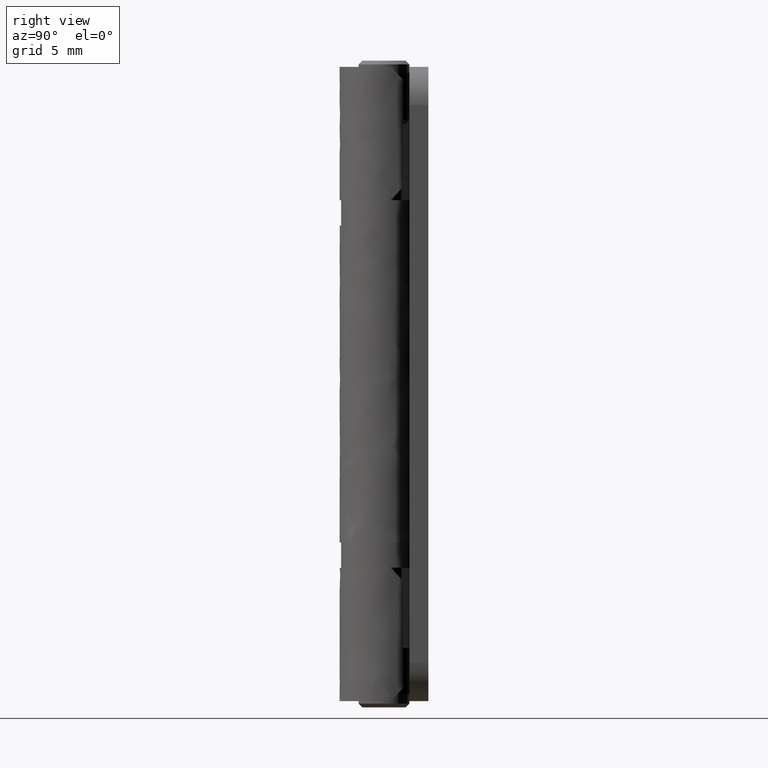
[diagram: clean part render]
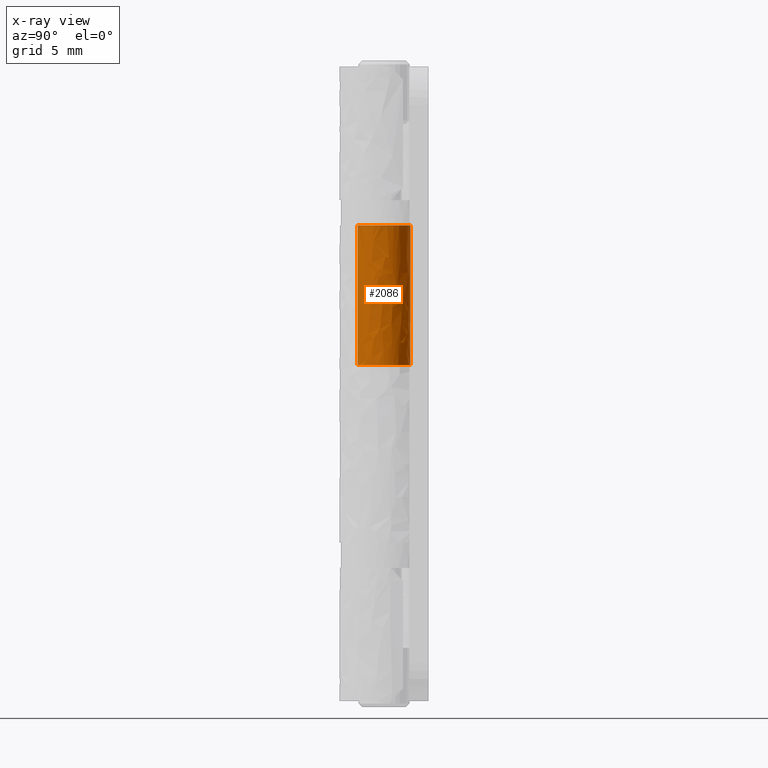
[diagram: x-ray — body ghosted, one internal face saturated and labeled with its STEP entity id]
A machine part, right view, then the same camera in x-ray: the body is ghosted and one INTERNAL B-rep face — a face not visible from any outside direction — is saturated and labeled: STEP entity #2086.
In plain terms, the highlighted face is a freeform B-spline surface patch.
Its self-contained STEP definition (entity closure, byte-faithful):
#1650=CARTESIAN_POINT('',(-0.310399763413693,2.076933313053822,26.500000000000000));
#1651=VERTEX_POINT('',#1650);
#1665=CARTESIAN_POINT('',(2.100000000000000,0.0,26.500000000000000));
#1666=VERTEX_POINT('',#1665);
#1667=CARTESIAN_POINT('',(-0.310399763413693,2.076933313053822,26.499999999999996));
#1668=CARTESIAN_POINT('',(-0.156056957177558,2.099999999999999,26.500000000000004));
#1669=CARTESIAN_POINT('',(0.0,2.100000000000000,26.500000000000000));
#1670=CARTESIAN_POINT('',(2.100000000000000,2.100000000000000,26.500000000000000));
#1671=CARTESIAN_POINT('',(2.100000000000000,0.0,26.500000000000000));
#1679=(BOUNDED_CURVE()B_SPLINE_CURVE(2,(#1667,#1668,#1669,#1670,#1671),.UNSPECIFIED.,.F.,.U.)B_SPLINE_CURVE_WITH_KNOTS((3,2,3),(0.224511030384919,0.250000000000000,0.500000000000000),.UNSPECIFIED.)CURVE()GEOMETRIC_REPRESENTATION_ITEM()RATIONAL_B_SPLINE_CURVE((0.946364879855924,0.970137814580803,1.0,0.707106781186548,1.0))REPRESENTATION_ITEM(''));
#1680=EDGE_CURVE('',#1651,#1666,#1679,.T.);
#1682=CARTESIAN_POINT('',(0.310399763413692,-2.076933313053822,26.500000000000000));
#1683=VERTEX_POINT('',#1682);
#1684=CARTESIAN_POINT('',(2.100000000000000,0.0,26.500000000000000));
#1685=CARTESIAN_POINT('',(2.100000000000001,-1.809475765644795,26.499999999999996));
#1686=CARTESIAN_POINT('',(0.310399763413692,-2.076933313053822,26.500000000000007));
#1694=(BOUNDED_CURVE()B_SPLINE_CURVE(2,(#1684,#1685,#1686),.UNSPECIFIED.,.F.,.U.)B_SPLINE_CURVE_WITH_KNOTS((3,3),(0.500000000000000,0.724511030384919),.UNSPECIFIED.)CURVE()GEOMETRIC_REPRESENTATION_ITEM()RATIONAL_B_SPLINE_CURVE((1.0,0.736968966605745,0.946364879855924))REPRESENTATION_ITEM(''));
#1695=EDGE_CURVE('',#1666,#1683,#1694,.T.);
#1923=CARTESIAN_POINT('',(-0.310399763388014,2.076933313057659,30.0));
#1924=VERTEX_POINT('',#1923);
#1938=CARTESIAN_POINT('',(-0.310399763413693,2.076933313053822,26.500000000000000));
#1939=CARTESIAN_POINT('',(-0.310399763388014,2.076933313057659,30.0));
#1940=QUASI_UNIFORM_CURVE('',1,(#1938,#1939),.UNSPECIFIED.,.F.,.U.);
#1941=EDGE_CURVE('',#1651,#1924,#1940,.T.);
#1945=CARTESIAN_POINT('',(0.310399763404862,-2.076933313055140,37.500000000000000));
#1946=VERTEX_POINT('',#1945);
#1947=CARTESIAN_POINT('',(0.310399763413692,-2.076933313053822,26.500000000000000));
#1948=CARTESIAN_POINT('',(0.310399763404862,-2.076933313055140,37.500000000000000));
#1949=QUASI_UNIFORM_CURVE('',1,(#1947,#1948),.UNSPECIFIED.,.F.,.U.);
#1950=EDGE_CURVE('',#1683,#1946,#1949,.T.);
#2020=CARTESIAN_POINT('',(0.310399763372182,-2.076933313060025,26.224999999999991));
#2021=CARTESIAN_POINT('',(2.387333076432207,-1.766533549687843,26.224999999999998));
#2022=CARTESIAN_POINT('',(2.076933313060025,0.310399763372182,26.224999999999991));
#2023=CARTESIAN_POINT('',(1.766533549687843,2.387333076432207,26.224999999999998));
#2024=CARTESIAN_POINT('',(-0.310399763372182,2.076933313060025,26.224999999999991));
#2025=CARTESIAN_POINT('',(0.310399763372182,-2.076933313060025,37.781875000000007));
#2026=CARTESIAN_POINT('',(2.387333076432207,-1.766533549687843,37.781875000000014));
#2027=CARTESIAN_POINT('',(2.076933313060025,0.310399763372182,37.781875000000007));
#2028=CARTESIAN_POINT('',(1.766533549687843,2.387333076432207,37.781875000000014));
#2029=CARTESIAN_POINT('',(-0.310399763372182,2.076933313060025,37.781875000000007));
#2037=(BOUNDED_SURFACE()B_SPLINE_SURFACE(2,1,((#2020,#2025),(#2021,#2026),(#2022,#2027),(#2023,#2028),(#2024,#2029)),.UNSPECIFIED.,.F.,.F.,.U.)B_SPLINE_SURFACE_WITH_KNOTS((3,2,3),(2,2),(0.0,3.479393923933997,6.958787847867994),(0.0,11.556875000000010),.UNSPECIFIED.)GEOMETRIC_REPRESENTATION_ITEM()RATIONAL_B_SPLINE_SURFACE(((1.0,1.0),(0.707106781186548,0.707106781186548),(1.0,1.0),(0.707106781186548,0.707106781186548),(1.0,1.0)))REPRESENTATION_ITEM('')SURFACE());
#2038=CARTESIAN_POINT('',(0.0,2.100000000000000,30.0));
#2039=VERTEX_POINT('',#2038);
#2040=CARTESIAN_POINT('',(-0.310399763388014,2.076933313057659,30.000000000000007));
#2041=CARTESIAN_POINT('',(-0.156056957164504,2.100000000000001,30.000000000000004));
#2042=CARTESIAN_POINT('',(0.0,2.100000000000000,30.0));
#2050=(BOUNDED_CURVE()B_SPLINE_CURVE(2,(#2040,#2041,#2042),.UNSPECIFIED.,.F.,.U.)B_SPLINE_CURVE_WITH_KNOTS((3,3),(0.850596625594695,1.0),.UNSPECIFIED.)CURVE()GEOMETRIC_REPRESENTATION_ITEM()RATIONAL_B_SPLINE_CURVE((0.967688525859301,0.981006582222150,1.0))REPRESENTATION_ITEM(''));
#2051=EDGE_CURVE('',#1924,#2039,#2050,.T.);
#2052=ORIENTED_EDGE('',*,*,#2051,.T.);
#2053=CARTESIAN_POINT('',(0.0,2.100000000000000,37.500000000000000));
#2054=VERTEX_POINT('',#2053);
#2055=CARTESIAN_POINT('',(0.0,2.100000000000000,30.0));
#2056=CARTESIAN_POINT('',(0.0,2.100000000000000,37.500000000000000));
#2057=QUASI_UNIFORM_CURVE('',1,(#2055,#2056),.UNSPECIFIED.,.F.,.U.);
#2058=EDGE_CURVE('',#2039,#2054,#2057,.T.);
#2059=ORIENTED_EDGE('',*,*,#2058,.T.);
#2060=CARTESIAN_POINT('',(0.0,2.100000000000000,37.500000000000000));
#2061=CARTESIAN_POINT('',(0.171879201357873,2.100041387022882,37.500000000000071));
#2062=CARTESIAN_POINT('',(0.433755810769431,2.067658721420967,37.499999999999957));
#2063=CARTESIAN_POINT('',(0.808686334101612,1.947618651597478,37.499999999999957));
#2064=CARTESIAN_POINT('',(1.124214206773241,1.788269859044645,37.500000000000227));
#2065=CARTESIAN_POINT('',(1.463301568916632,1.527955354031464,37.499999999999908));
#2066=CARTESIAN_POINT('',(1.751870625820060,1.189200198049643,37.499999999999950));
#2067=CARTESIAN_POINT('',(1.954589401992094,0.802971282791069,37.500000000000057));
#2068=CARTESIAN_POINT('',(2.088780270988173,0.354279096640464,37.499999999999737));
#2069=CARTESIAN_POINT('',(2.117149825218692,-0.099407304982058,37.500000000000369));
#2070=CARTESIAN_POINT('',(2.031610740125983,-0.593522270081048,37.499999999999780));
#2071=CARTESIAN_POINT('',(1.835283647083478,-1.074553092349404,37.500000000000192));
#2072=CARTESIAN_POINT('',(1.550130912790252,-1.440140141344950,37.499999999999943));
#2073=CARTESIAN_POINT('',(1.218876630278302,-1.721167838559448,37.500000000000178));
#2074=CARTESIAN_POINT('',(0.853137493990254,-1.943386338939116,37.499999999999382));
#2075=CARTESIAN_POINT('',(0.512788389351800,-2.046775079829397,37.500000000000760));
#2076=CARTESIAN_POINT('',(0.310399763404862,-2.076933313055140,37.500000000000000));
#2077=B_SPLINE_CURVE_WITH_KNOTS('',3,(#2060,#2061,#2062,#2063,#2064,#2065,#2066,#2067,#2068,#2069,#2070,#2071,#2072,#2073,#2074,#2075,#2076),.UNSPECIFIED.,.F.,.U.,(4,1,1,1,1,1,1,1,1,1,1,1,1,1,4),(0.000000144341052,0.515624971653438,0.785710810876516,1.178585243414468,1.571461094453514,2.062555584848471,2.504522391729202,2.872838989576145,3.462097373653898,3.854986005089395,4.370623573994003,5.009031994814897,5.230016371693258,5.671990485094907,6.285839104990577),.UNSPECIFIED.);
#2078=EDGE_CURVE('',#2054,#1946,#2077,.T.);
#2079=ORIENTED_EDGE('',*,*,#2078,.T.);
#2080=ORIENTED_EDGE('',*,*,#1950,.F.);
#2081=ORIENTED_EDGE('',*,*,#1695,.F.);
#2082=ORIENTED_EDGE('',*,*,#1680,.F.);
#2083=ORIENTED_EDGE('',*,*,#1941,.T.);
#2084=EDGE_LOOP('',(#2052,#2059,#2079,#2080,#2081,#2082,#2083));
#2085=FACE_OUTER_BOUND('',#2084,.T.);
#2086=ADVANCED_FACE('',(#2085),#2037,.T.);